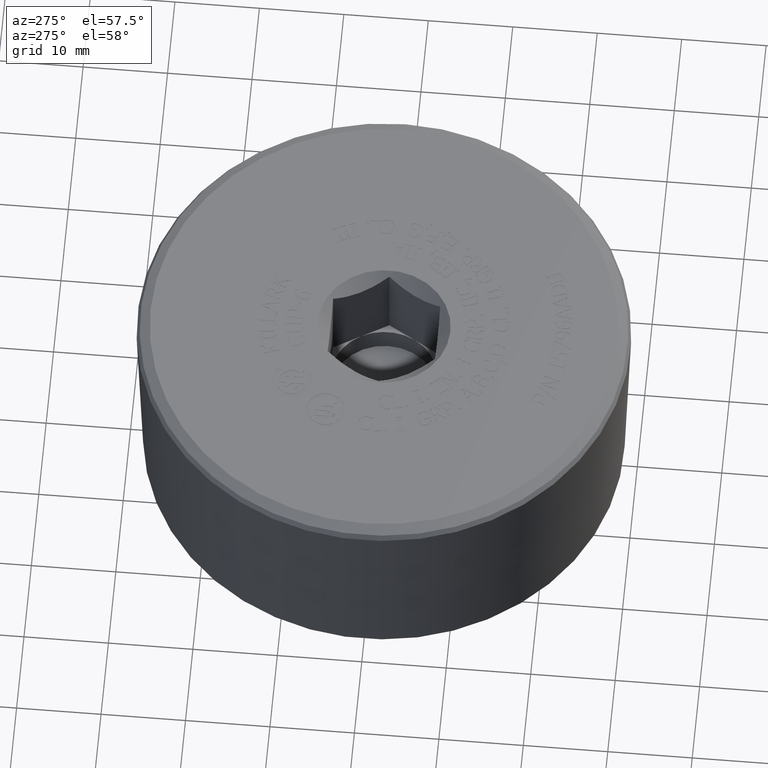
[diagram: clean part render]
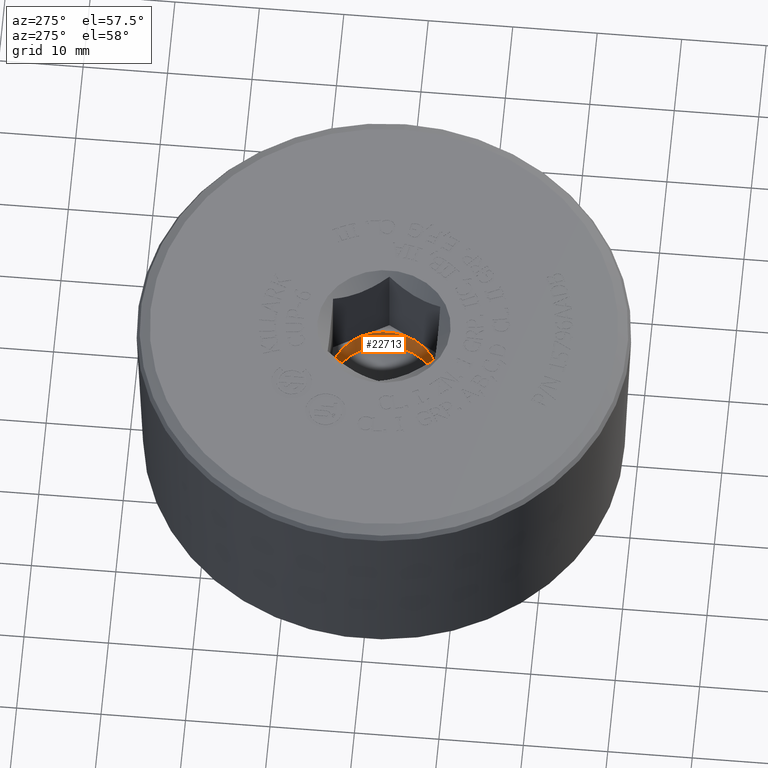
[diagram: same view with one face highlighted and labeled with its STEP entity id]
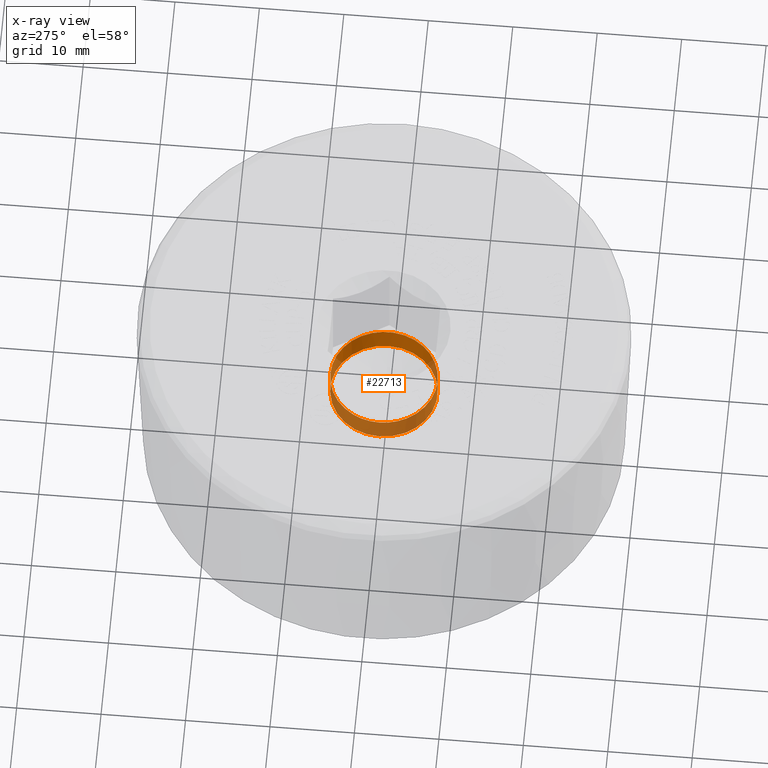
[diagram: x-ray of the same camera — body ghosted, the highlighted face saturated]
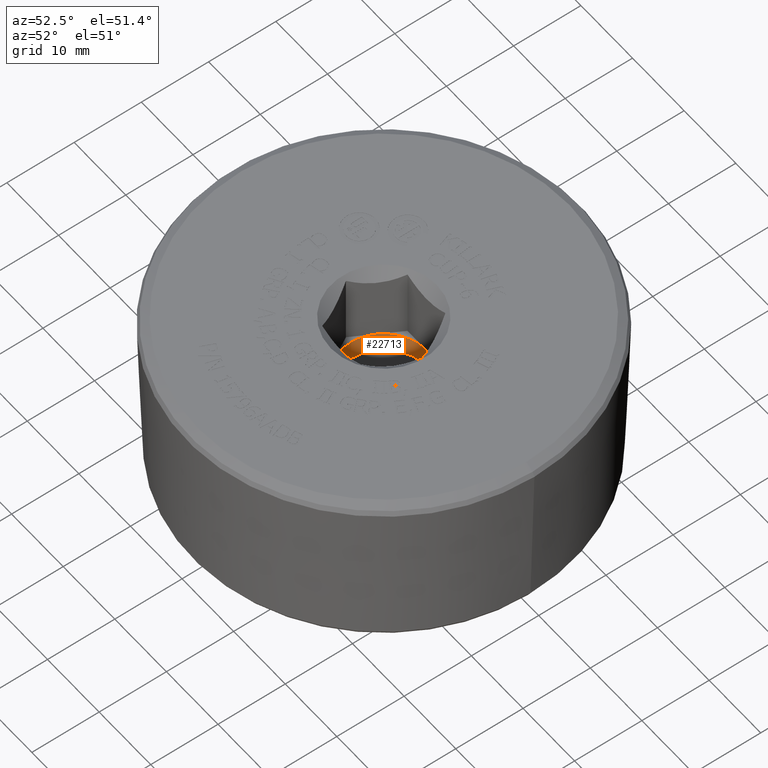
[diagram: same view with one face highlighted and labeled with its STEP entity id]
A machine part, auxiliary view. The second image highlights one B-rep face of the part: STEP entity #22713.
The next image is the same camera in x-ray: the body ghosted, the highlighted face saturated — about 57% of this face is hidden behind the body in this view.
A second angle (auxiliary view) of the same face is appended — the face is thin or edge-on in the first view.
In plain terms, the highlighted cylindrical surface (bore or boss wall) has radius 6.35 mm, axis along (0, 0, 1).
Its self-contained STEP definition (entity closure, byte-faithful):
#3285=FACE_OUTER_BOUND('',#4612,.T.);
#4612=EDGE_LOOP('',(#21476,#21477,#21478,#21479,#21480,#21481,#21482,#21483,
#21484,#21485,#21486));
#7058=LINE('',#39348,#9504);
#9504=VECTOR('',#27842,0.25);
#9549=CIRCLE('',#23605,0.25);
#9550=CIRCLE('',#23607,0.25);
#9551=CIRCLE('',#23609,0.25);
#9552=CIRCLE('',#23611,0.25);
#9553=CIRCLE('',#23612,0.25);
#9554=CIRCLE('',#23614,0.25);
#9555=CIRCLE('',#23616,0.25);
#9556=CIRCLE('',#23618,0.25);
#9557=CIRCLE('',#23619,0.25);
#11710=VERTEX_POINT('',#39291);
#11713=VERTEX_POINT('',#39299);
#11715=VERTEX_POINT('',#39305);
#11717=VERTEX_POINT('',#39313);
#11719=VERTEX_POINT('',#39319);
#11720=VERTEX_POINT('',#39323);
#11721=VERTEX_POINT('',#39333);
#11722=VERTEX_POINT('',#39341);
#11723=VERTEX_POINT('',#39342);
#14968=EDGE_CURVE('',#11710,#11713,#9549,.T.);
#14969=EDGE_CURVE('',#11713,#11715,#9550,.T.);
#14970=EDGE_CURVE('',#11715,#11717,#9551,.T.);
#14971=EDGE_CURVE('',#11717,#11721,#9552,.T.);
#14972=EDGE_CURVE('',#11721,#11719,#9553,.T.);
#14973=EDGE_CURVE('',#11719,#11720,#9554,.T.);
#14974=EDGE_CURVE('',#11720,#11710,#9555,.T.);
#14975=EDGE_CURVE('',#11722,#11723,#9556,.T.);
#14977=EDGE_CURVE('',#11723,#11722,#9557,.T.);
#14978=EDGE_CURVE('',#11721,#11723,#7058,.T.);
#21476=ORIENTED_EDGE('',*,*,#14968,.T.);
#21477=ORIENTED_EDGE('',*,*,#14969,.T.);
#21478=ORIENTED_EDGE('',*,*,#14970,.T.);
#21479=ORIENTED_EDGE('',*,*,#14971,.T.);
#21480=ORIENTED_EDGE('',*,*,#14978,.T.);
#21481=ORIENTED_EDGE('',*,*,#14975,.F.);
#21482=ORIENTED_EDGE('',*,*,#14977,.F.);
#21483=ORIENTED_EDGE('',*,*,#14978,.F.);
#21484=ORIENTED_EDGE('',*,*,#14972,.T.);
#21485=ORIENTED_EDGE('',*,*,#14973,.T.);
#21486=ORIENTED_EDGE('',*,*,#14974,.T.);
#21505=CYLINDRICAL_SURFACE('',#23620,0.25);
#22713=ADVANCED_FACE('',(#3285),#21505,.F.);
#23605=AXIS2_PLACEMENT_3D('',#39327,#27809,#27810);
#23607=AXIS2_PLACEMENT_3D('',#39329,#27813,#27814);
#23609=AXIS2_PLACEMENT_3D('',#39331,#27817,#27818);
#23611=AXIS2_PLACEMENT_3D('',#39334,#27821,#27822);
#23612=AXIS2_PLACEMENT_3D('',#39335,#27823,#27824);
#23614=AXIS2_PLACEMENT_3D('',#39337,#27827,#27828);
#23616=AXIS2_PLACEMENT_3D('',#39339,#27831,#27832);
#23618=AXIS2_PLACEMENT_3D('',#39343,#27835,#27836);
#23619=AXIS2_PLACEMENT_3D('',#39346,#27838,#27839);
#23620=AXIS2_PLACEMENT_3D('',#39347,#27840,#27841);
#27809=DIRECTION('center_axis',(1.3684555315672E-47,1.00674441124468E-31,
1.));
#27810=DIRECTION('ref_axis',(1.,0.,0.));
#27813=DIRECTION('center_axis',(1.3684555315672E-47,1.00674441124468E-31,
1.));
#27814=DIRECTION('ref_axis',(1.,0.,0.));
#27817=DIRECTION('center_axis',(1.3684555315672E-47,1.00674441124468E-31,
1.));
#27818=DIRECTION('ref_axis',(1.,0.,0.));
#27821=DIRECTION('center_axis',(1.3684555315672E-47,1.00674441124468E-31,
1.));
#27822=DIRECTION('ref_axis',(1.,0.,0.));
#27823=DIRECTION('center_axis',(1.3684555315672E-47,1.00674441124468E-31,
1.));
#27824=DIRECTION('ref_axis',(1.,0.,0.));
#27827=DIRECTION('center_axis',(1.3684555315672E-47,1.00674441124468E-31,
1.));
#27828=DIRECTION('ref_axis',(1.,0.,0.));
#27831=DIRECTION('center_axis',(1.3684555315672E-47,1.00674441124468E-31,
1.));
#27832=DIRECTION('ref_axis',(1.,0.,0.));
#27835=DIRECTION('center_axis',(0.,0.,1.));
#27836=DIRECTION('ref_axis',(1.,0.,0.));
#27838=DIRECTION('center_axis',(0.,0.,1.));
#27839=DIRECTION('ref_axis',(1.,0.,0.));
#27840=DIRECTION('center_axis',(0.,0.,1.));
#27841=DIRECTION('ref_axis',(1.,0.,0.));
#27842=DIRECTION('',(0.,0.,-1.));
#39291=CARTESIAN_POINT('',(0.21650635094611,-0.125,0.56));
#39299=CARTESIAN_POINT('',(0.21650635094611,0.125,0.56));
#39305=CARTESIAN_POINT('',(-7.64917438225994E-17,0.25,0.56));
#39313=CARTESIAN_POINT('',(-0.21650635094611,0.125,0.56));
#39319=CARTESIAN_POINT('',(-0.21650635094611,-0.125,0.56));
#39323=CARTESIAN_POINT('',(0.,-0.25,0.56));
#39327=CARTESIAN_POINT('Origin',(0.,0.,0.56));
#39329=CARTESIAN_POINT('Origin',(0.,0.,0.56));
#39331=CARTESIAN_POINT('Origin',(0.,0.,0.56));
#39333=CARTESIAN_POINT('',(-0.25,-3.06161699786838E-17,0.56));
#39334=CARTESIAN_POINT('Origin',(0.,0.,0.56));
#39335=CARTESIAN_POINT('Origin',(0.,0.,0.56));
#39337=CARTESIAN_POINT('Origin',(0.,0.,0.56));
#39339=CARTESIAN_POINT('Origin',(0.,0.,0.56));
#39341=CARTESIAN_POINT('',(0.25,0.,0.44));
#39342=CARTESIAN_POINT('',(-0.25,-3.06161699786838E-17,0.44));
#39343=CARTESIAN_POINT('Origin',(0.,0.,0.44));
#39346=CARTESIAN_POINT('Origin',(0.,0.,0.44));
#39347=CARTESIAN_POINT('Origin',(0.,0.,0.72));
#39348=CARTESIAN_POINT('',(-0.25,-3.06161699786838E-17,0.72));